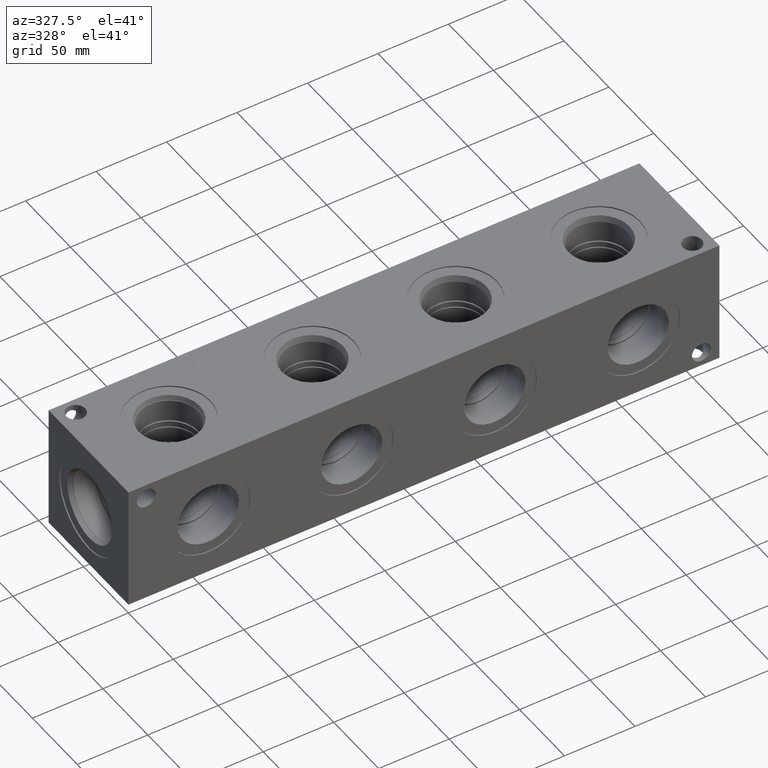
[diagram: clean part render]
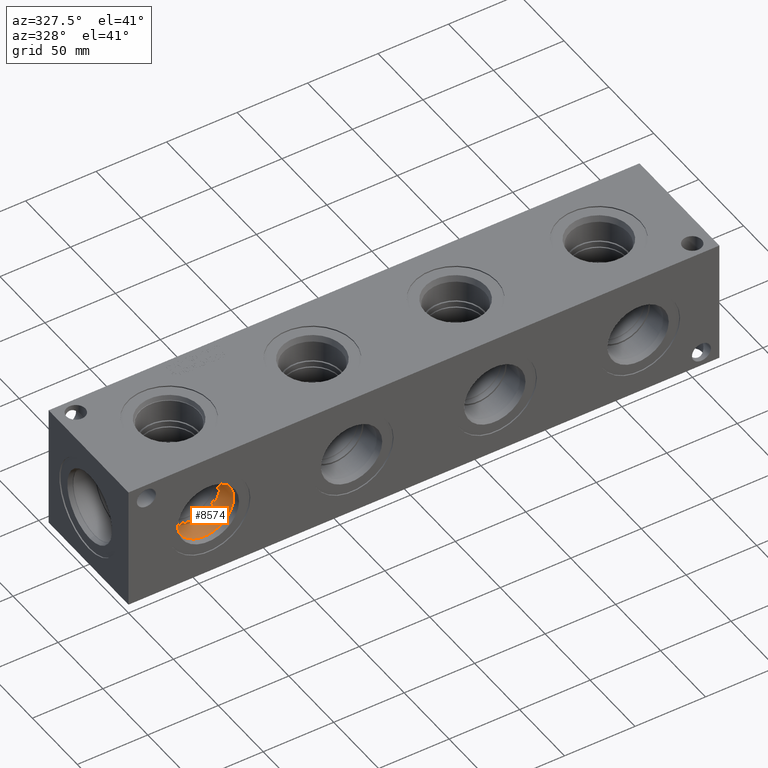
[diagram: same view with one face highlighted and labeled with its STEP entity id]
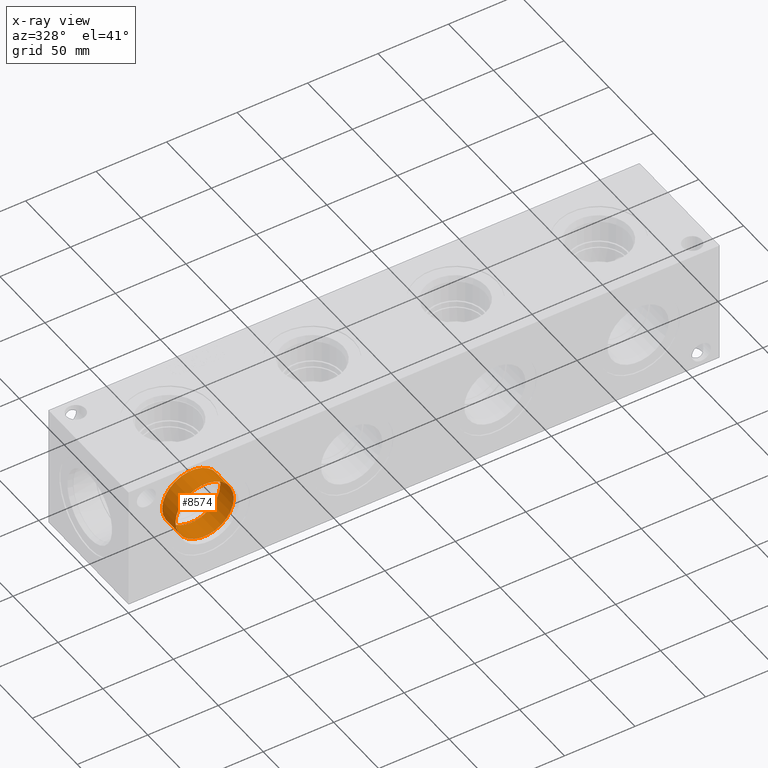
[diagram: x-ray of the same camera — body ghosted, the highlighted face saturated]
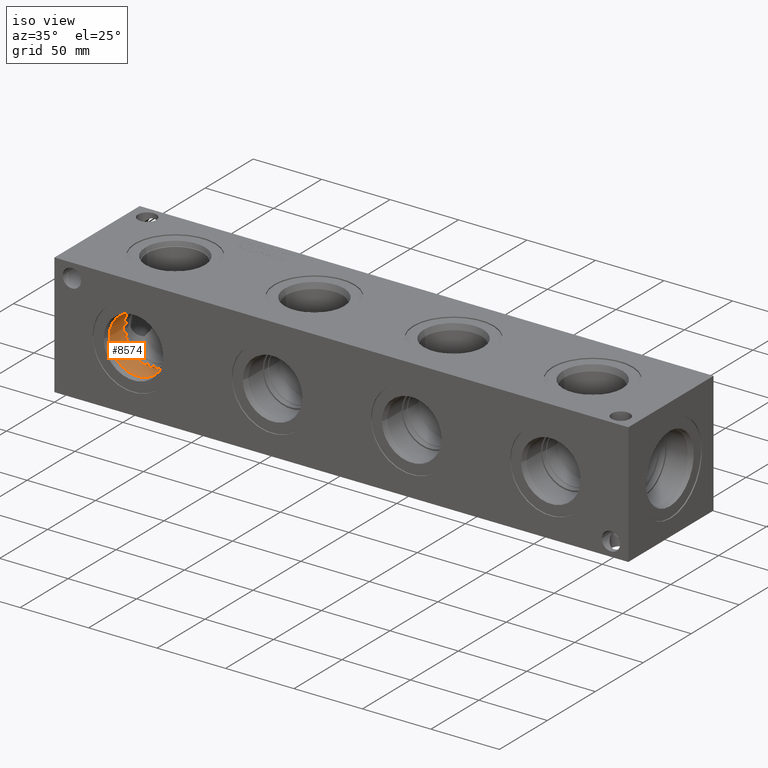
[diagram: same view with one face highlighted and labeled with its STEP entity id]
A machine part, auxiliary view. The second image highlights one B-rep face of the part: STEP entity #8574.
The next image is the same camera in x-ray: the body ghosted, the highlighted face saturated — about 0% of this face is hidden behind the body in this view.
A second angle (iso view) of the same face is appended — the face is thin or edge-on in the first view.
In plain terms, the highlighted cylindrical surface (bore or boss wall) has radius 20.6375 mm, axis along (0, -1, 0).
Its self-contained STEP definition (entity closure, byte-faithful):
#122=CYLINDRICAL_SURFACE('',#9013,20.6375);
#228=CIRCLE('',#9010,20.6375);
#229=CIRCLE('',#9011,20.6375);
#231=CIRCLE('',#9014,20.6375);
#1114=FACE_OUTER_BOUND('',#1601,.T.);
#1601=EDGE_LOOP('',(#7118,#7119,#7120,#7121,#7122));
#2401=LINE('',#14791,#3142);
#3142=VECTOR('',#10569,20.6375);
#3877=VERTEX_POINT('',#14782);
#3878=VERTEX_POINT('',#14783);
#3880=VERTEX_POINT('',#14789);
#5002=EDGE_CURVE('',#3877,#3878,#228,.T.);
#5003=EDGE_CURVE('',#3878,#3877,#229,.T.);
#5005=EDGE_CURVE('',#3880,#3880,#231,.T.);
#5006=EDGE_CURVE('',#3880,#3878,#2401,.T.);
#7118=ORIENTED_EDGE('',*,*,#5005,.F.);
#7119=ORIENTED_EDGE('',*,*,#5006,.T.);
#7120=ORIENTED_EDGE('',*,*,#5002,.F.);
#7121=ORIENTED_EDGE('',*,*,#5003,.F.);
#7122=ORIENTED_EDGE('',*,*,#5006,.F.);
#8574=ADVANCED_FACE('',(#1114),#122,.F.);
#9010=AXIS2_PLACEMENT_3D('',#14784,#10559,#10560);
#9011=AXIS2_PLACEMENT_3D('',#14785,#10561,#10562);
#9013=AXIS2_PLACEMENT_3D('',#14788,#10565,#10566);
#9014=AXIS2_PLACEMENT_3D('',#14790,#10567,#10568);
#10559=DIRECTION('center_axis',(0.,-1.,0.));
#10560=DIRECTION('ref_axis',(1.,0.,0.));
#10561=DIRECTION('center_axis',(0.,-1.,0.));
#10562=DIRECTION('ref_axis',(1.,0.,0.));
#10565=DIRECTION('center_axis',(0.,-1.,0.));
#10566=DIRECTION('ref_axis',(1.,0.,0.));
#10567=DIRECTION('center_axis',(0.,1.,0.));
#10568=DIRECTION('ref_axis',(1.,0.,0.));
#10569=DIRECTION('',(0.,1.,0.));
#14782=CARTESIAN_POINT('',(77.7875,19.8374,44.45));
#14783=CARTESIAN_POINT('',(36.5125,19.8374,44.45));
#14784=CARTESIAN_POINT('Origin',(57.15,19.8374,44.45));
#14785=CARTESIAN_POINT('Origin',(57.15,19.8374,44.45));
#14788=CARTESIAN_POINT('Origin',(57.15,9.9187,44.45));
#14789=CARTESIAN_POINT('',(36.5125,4.97099998253897,44.45));
#14790=CARTESIAN_POINT('Origin',(57.15,4.97099998253897,44.45));
#14791=CARTESIAN_POINT('',(36.5125,9.9187,44.45));